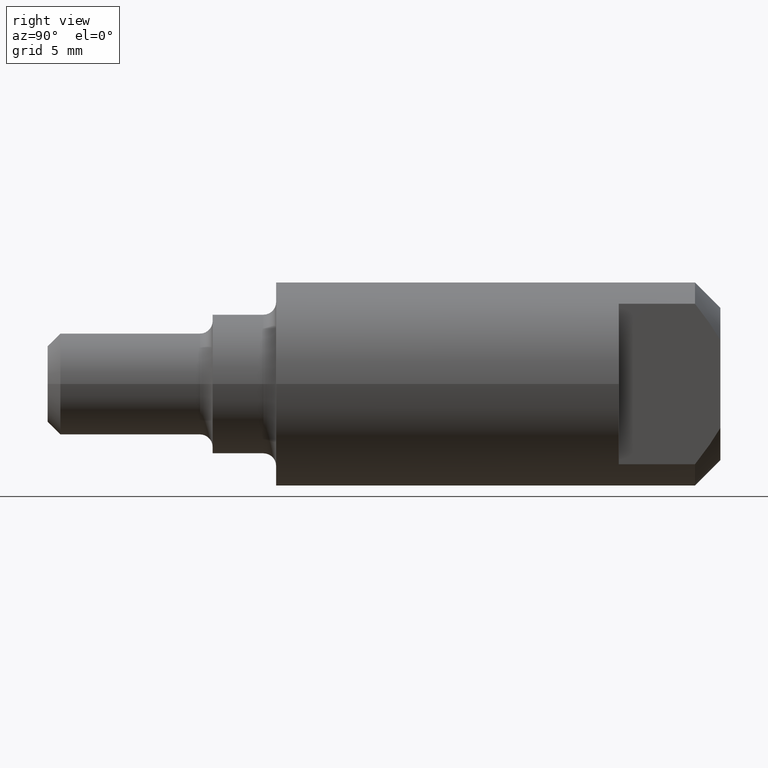
[diagram: clean part render]
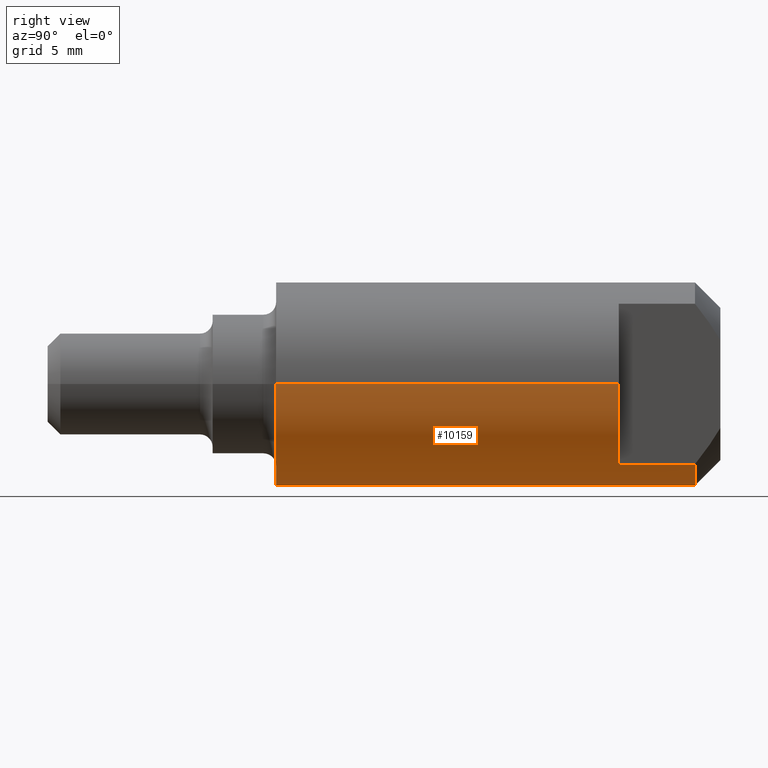
[diagram: same view with one face highlighted and labeled with its STEP entity id]
A machine part, right view. The second image highlights one B-rep face of the part: STEP entity #10159.
In plain terms, the highlighted cylindrical surface (partial cylindrical patch) has radius 8 mm, axis along (0, -1, -0).
Its self-contained STEP definition (entity closure, byte-faithful):
#101 = DIRECTION ( 'NONE',  ( 2.385244779468109800E-016, -1.000000000000000000, -0.0000000000000000000 ) ) ;
#141 = AXIS2_PLACEMENT_3D ( 'NONE', #7686, #101, #8543 ) ;
#249 = CARTESIAN_POINT ( 'NONE',  ( 4.899999999999992400, 32.00000000000000000, -6.323764701504964100 ) ) ;
#312 = EDGE_CURVE ( 'NONE', #6373, #5827, #2013, .T. ) ;
#524 = ORIENTED_EDGE ( 'NONE', *, *, #2480, .T. ) ;
#555 = DIRECTION ( 'NONE',  ( -2.385244779468109800E-016, 1.000000000000000000, 0.0000000000000000000 ) ) ;
#1402 = VECTOR ( 'NONE', #9422, 1000.000000000000000 ) ;
#1515 = CARTESIAN_POINT ( 'NONE',  ( -9.063930161978817100E-015, 38.00000000000000000, 0.0000000000000000000 ) ) ;
#2009 = CARTESIAN_POINT ( 'NONE',  ( -8.000000000000003600, 4.999999999999996400, 9.797174393178831600E-016 ) ) ;
#2013 = CIRCLE ( 'NONE', #9436, 8.000000000000010700 ) ;
#2140 = AXIS2_PLACEMENT_3D ( 'NONE', #9871, #9082, #4908 ) ;
#2235 = VERTEX_POINT ( 'NONE', #9064 ) ;
#2436 = VECTOR ( 'NONE', #6839, 1000.000000000000000 ) ;
#2480 = EDGE_CURVE ( 'NONE', #5239, #7646, #4107, .T. ) ;
#2490 = ORIENTED_EDGE ( 'NONE', *, *, #3528, .T. ) ;
#2710 = EDGE_CURVE ( 'NONE', #9994, #4937, #7729, .T. ) ;
#2867 = FACE_OUTER_BOUND ( 'NONE', #7557, .T. ) ;
#3091 = LINE ( 'NONE', #6012, #2436 ) ;
#3194 = CARTESIAN_POINT ( 'NONE',  ( 8.000000000000007100, 1.908195823574489400E-015, 0.0000000000000000000 ) ) ;
#3528 = EDGE_CURVE ( 'NONE', #2235, #4937, #6814, .T. ) ;
#3548 = AXIS2_PLACEMENT_3D ( 'NONE', #1515, #8232, #7367 ) ;
#3956 = CARTESIAN_POINT ( 'NONE',  ( -7.632783294297951200E-015, 32.00000000000000000, 0.0000000000000000000 ) ) ;
#4107 = CIRCLE ( 'NONE', #3548, 8.000000000000007100 ) ;
#4124 = VECTOR ( 'NONE', #9154, 1000.000000000000000 ) ;
#4209 = CARTESIAN_POINT ( 'NONE',  ( 4.899999999999992400, 32.00000000000000000, -6.323764701504964100 ) ) ;
#4514 = CIRCLE ( 'NONE', #9851, 8.000000000000010700 ) ;
#4857 = ORIENTED_EDGE ( 'NONE', *, *, #8741, .F. ) ;
#4908 = DIRECTION ( 'NONE',  ( 1.000000000000000000, 2.385244779468109800E-016, 0.0000000000000000000 ) ) ;
#4937 = VERTEX_POINT ( 'NONE', #6861 ) ;
#5050 = CARTESIAN_POINT ( 'NONE',  ( 4.899999999999990600, 38.00000000000000000, -6.323764701504964100 ) ) ;
#5231 = CYLINDRICAL_SURFACE ( 'NONE', #2140, 8.000000000000007100 ) ;
#5239 = VERTEX_POINT ( 'NONE', #6702 ) ;
#5769 = ORIENTED_EDGE ( 'NONE', *, *, #8189, .F. ) ;
#5822 = LINE ( 'NONE', #249, #1402 ) ;
#5827 = VERTEX_POINT ( 'NONE', #7625 ) ;
#5963 = DIRECTION ( 'NONE',  ( -1.000000000000000000, 0.0000000000000000000, 0.0000000000000000000 ) ) ;
#6003 = VERTEX_POINT ( 'NONE', #4209 ) ;
#6012 = CARTESIAN_POINT ( 'NONE',  ( -4.900000000000009200, 32.00000000000000000, -6.323764701504963200 ) ) ;
#6373 = VERTEX_POINT ( 'NONE', #7302 ) ;
#6702 = CARTESIAN_POINT ( 'NONE',  ( -4.900000000000011000, 37.99999999999999300, -6.323764701504963200 ) ) ;
#6710 = LINE ( 'NONE', #9970, #4124 ) ;
#6814 = LINE ( 'NONE', #3194, #10492 ) ;
#6839 = DIRECTION ( 'NONE',  ( -2.385244779468109800E-016, 1.000000000000000000, -0.0000000000000000000 ) ) ;
#6861 = CARTESIAN_POINT ( 'NONE',  ( 8.000000000000000000, 5.000000000000000000, 0.0000000000000000000 ) ) ;
#7302 = CARTESIAN_POINT ( 'NONE',  ( -4.900000000000009200, 32.00000000000000000, -6.323764701504963200 ) ) ;
#7321 = EDGE_CURVE ( 'NONE', #6373, #5239, #3091, .T. ) ;
#7367 = DIRECTION ( 'NONE',  ( -1.000000000000000000, 0.0000000000000000000, 0.0000000000000000000 ) ) ;
#7557 = EDGE_LOOP ( 'NONE', ( #9285, #9024, #8203, #524, #5769, #4857, #2490, #10013 ) ) ;
#7625 = CARTESIAN_POINT ( 'NONE',  ( -8.000000000000017800, 32.00000000000000000, 9.797174393178841400E-016 ) ) ;
#7646 = VERTEX_POINT ( 'NONE', #5050 ) ;
#7686 = CARTESIAN_POINT ( 'NONE',  ( -1.192622389734054500E-015, 4.999999999999998200, 0.0000000000000000000 ) ) ;
#7729 = CIRCLE ( 'NONE', #141, 8.000000000000001800 ) ;
#8189 = EDGE_CURVE ( 'NONE', #6003, #7646, #5822, .T. ) ;
#8203 = ORIENTED_EDGE ( 'NONE', *, *, #7321, .T. ) ;
#8232 = DIRECTION ( 'NONE',  ( 2.385244779468110700E-016, -1.000000000000000000, -0.0000000000000000000 ) ) ;
#8458 = DIRECTION ( 'NONE',  ( -2.385244779468109800E-016, 1.000000000000000000, 0.0000000000000000000 ) ) ;
#8543 = DIRECTION ( 'NONE',  ( 1.000000000000000000, 2.168404344971008400E-016, 0.0000000000000000000 ) ) ;
#8741 = EDGE_CURVE ( 'NONE', #2235, #6003, #4514, .T. ) ;
#8817 = DIRECTION ( 'NONE',  ( -1.000000000000000000, 0.0000000000000000000, 0.0000000000000000000 ) ) ;
#9001 = DIRECTION ( 'NONE',  ( 2.385244779468109800E-016, -1.000000000000000000, -0.0000000000000000000 ) ) ;
#9008 = EDGE_CURVE ( 'NONE', #5827, #9994, #6710, .T. ) ;
#9024 = ORIENTED_EDGE ( 'NONE', *, *, #312, .F. ) ;
#9064 = CARTESIAN_POINT ( 'NONE',  ( 8.000000000000003600, 32.00000000000000000, 0.0000000000000000000 ) ) ;
#9082 = DIRECTION ( 'NONE',  ( 2.385244779468109800E-016, -1.000000000000000000, -0.0000000000000000000 ) ) ;
#9154 = DIRECTION ( 'NONE',  ( 2.385244779468109800E-016, -1.000000000000000000, -0.0000000000000000000 ) ) ;
#9285 = ORIENTED_EDGE ( 'NONE', *, *, #9008, .F. ) ;
#9422 = DIRECTION ( 'NONE',  ( -2.385244779468109800E-016, 1.000000000000000000, -0.0000000000000000000 ) ) ;
#9436 = AXIS2_PLACEMENT_3D ( 'NONE', #3956, #555, #8817 ) ;
#9851 = AXIS2_PLACEMENT_3D ( 'NONE', #10087, #8458, #5963 ) ;
#9871 = CARTESIAN_POINT ( 'NONE',  ( 0.0000000000000000000, 0.0000000000000000000, 0.0000000000000000000 ) ) ;
#9970 = CARTESIAN_POINT ( 'NONE',  ( -8.000000000000007100, -1.908195823574489400E-015, 9.797174393178835500E-016 ) ) ;
#9994 = VERTEX_POINT ( 'NONE', #2009 ) ;
#10013 = ORIENTED_EDGE ( 'NONE', *, *, #2710, .F. ) ;
#10087 = CARTESIAN_POINT ( 'NONE',  ( -7.632783294297951200E-015, 32.00000000000000000, 0.0000000000000000000 ) ) ;
#10159 = ADVANCED_FACE ( 'NONE', ( #2867 ), #5231, .T. ) ;
#10492 = VECTOR ( 'NONE', #9001, 1000.000000000000000 ) ;